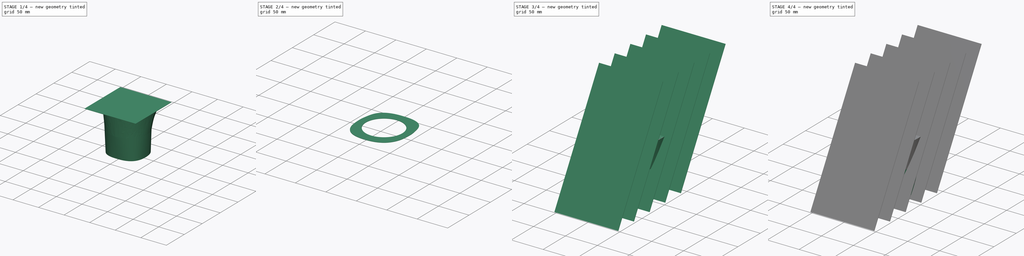
[diagram: build sequence overview — one tinted view per stage of 4, left to right]
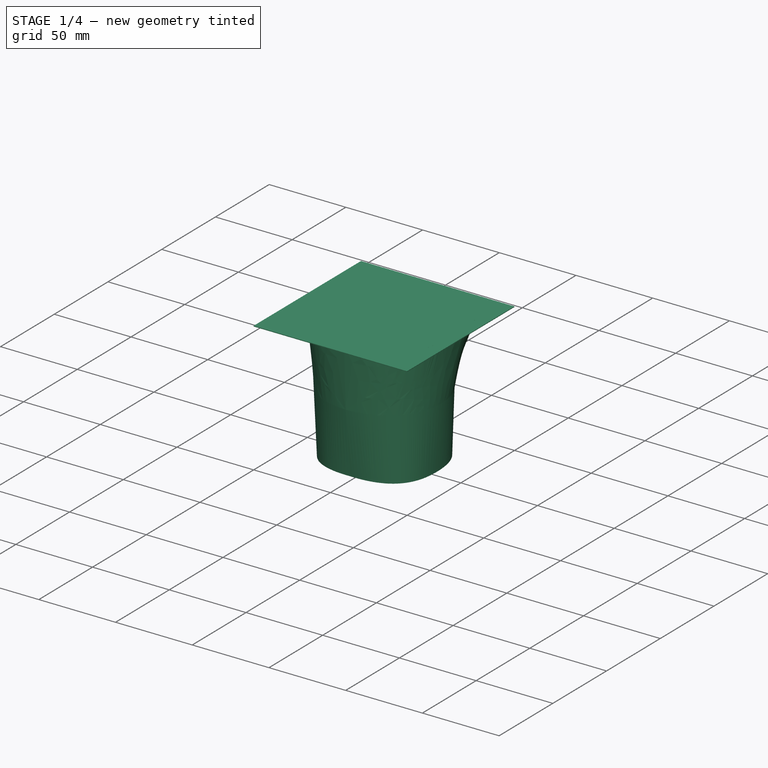
[diagram: stage 1 of 4 — iso view after this stage's code; geometry added in this stage tinted green]
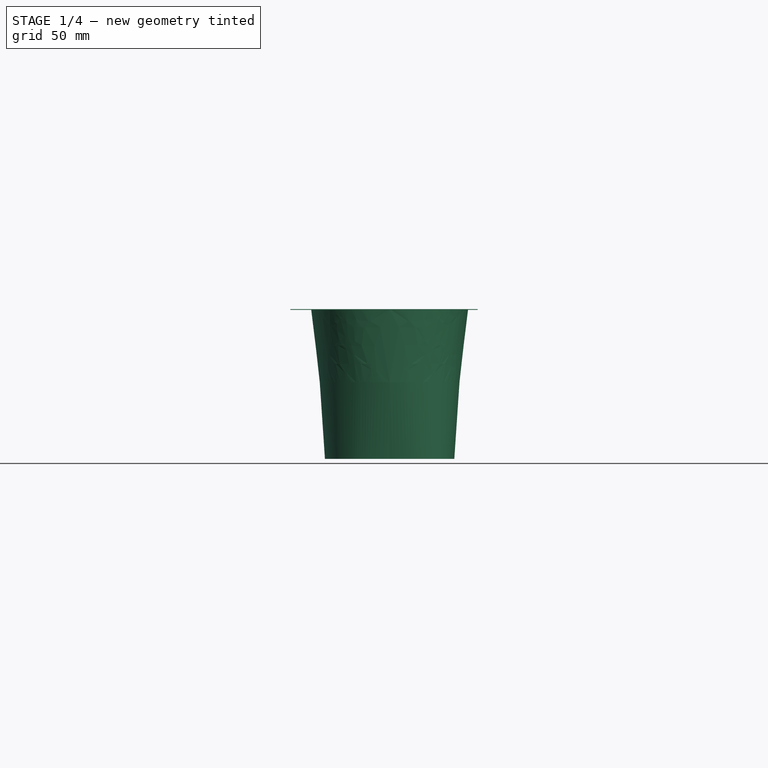
[diagram: stage 1 of 4 — front view after this stage's code; geometry added in this stage tinted green]
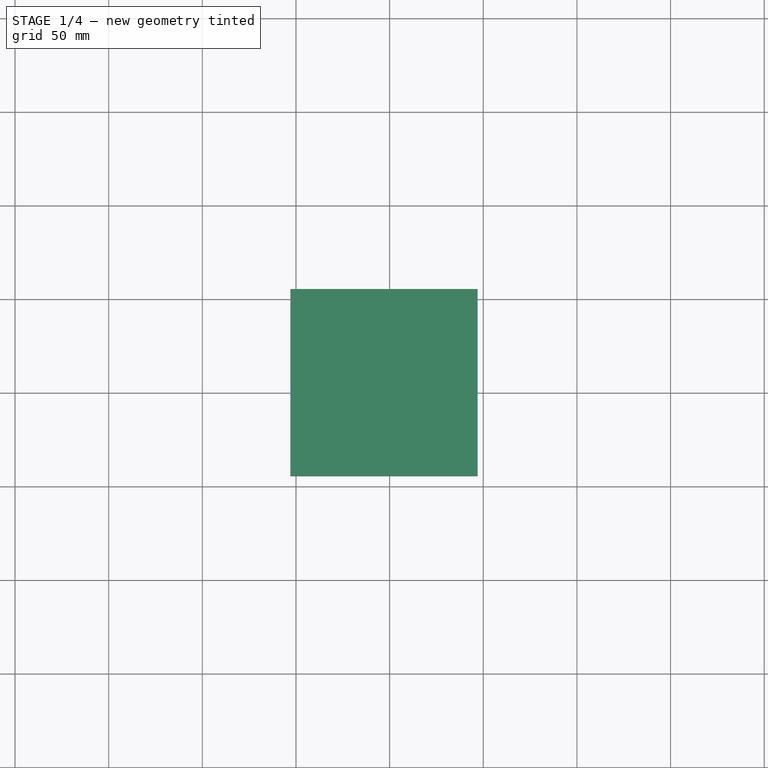
[diagram: stage 1 of 4 — top view after this stage's code; geometry added in this stage tinted green]
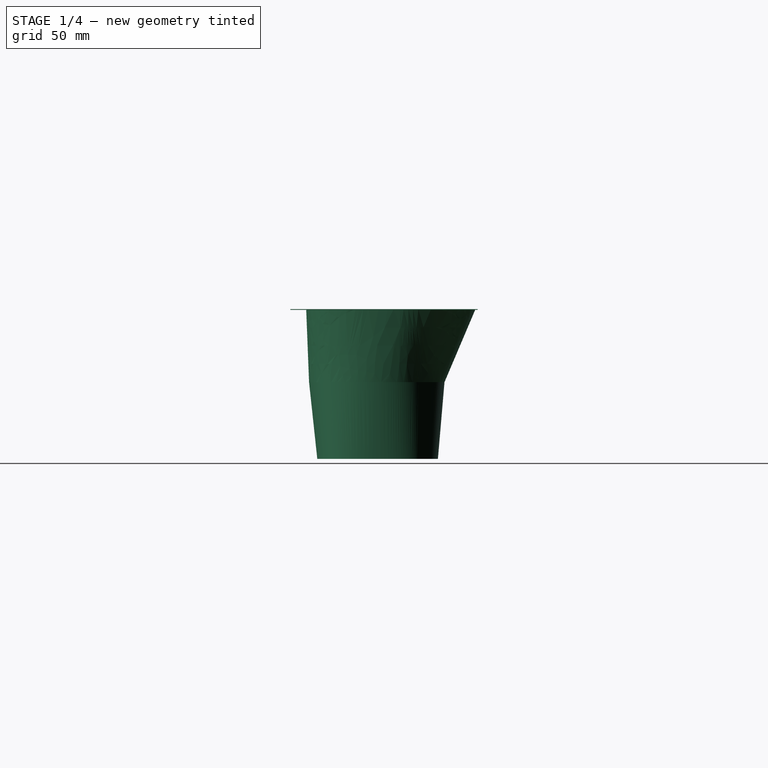
[diagram: stage 1 of 4 — right view after this stage's code; geometry added in this stage tinted green]
FCSTD DOCUMENT  (FreeCAD 0.21R33694 (Git))
Label: nose_demo
License: All rights reserved
LicenseURL: http://en.wikipedia.org/wiki/All_rights_reserved
objects: Sketcher::SketchObject×8, Image::ImagePlane×4, PartDesign::AdditiveLoft×4, PartDesign::Body×4, PartDesign::Thickness×2, Part::MultiFuse×2, Part::Box×2, App::MeasureDistance×1, Part::FeaturePython×1, Part::Cylinder×1, Part::MultiCommon×1, Part::Cut×1
note: 31 computed .brp shape members not serialized (recipe doc carries the construction recipe); baked Part::Feature solids carry a one-line shape summary decoded from their .brp

FEATURE [Part::Box] Box001  label="Cube001"
  AttacherType = Attacher::AttachEngine3D
  Height = 0.4
  Length = 100
  Placement = pos=(-53,-45.8,79.6) rot=(0,0,1;0rad)
  Width = 100
FEATURE [Sketcher::SketchObject] Sketch009
  AttachmentOffset = pos=(0,0,41) rot=(0,0,1;0rad)
  FullyConstrained = false
  MapMode = 5
  Placement = pos=(0,0,41) rot=(0,0,1;0rad)
  Support = -> [XY_Plane003]
  sketch-geometry (10):
    g0-g4: Circle x5 (B-spline internal-alignment scaffolding for g5; pole/knot coordinates omitted)
    g5: BSplineCurve PolesCount=5 KnotsCount=3 Degree=3 IsPeriodic=0
    g6: GeomPoint X=0 Y=36.497 Z=0
    g7: GeomPoint X=37.3042 Y=0.119484 Z=0
    g8: GeomPoint X=0 Y=-35.8137 Z=0
    g9: BSplineCurve PolesCount=5 KnotsCount=3 Degree=3 IsPeriodic=0
  constraints (12):
    c: Weight(g0) = 1
    c: PointOnObject(g5,g-2)
    c: Equal(g0,g1)
    c: Equal(g0,g2)
    c: PointOnObject(g2,g-1)
    c: Equal(g0,g3)
    c: Equal(g0,g4)
    c: PointOnObject(g5,g-2)
    c: InternalAlignment(g0-g4 -> g5) x5
    c: InternalAlignment(g6,g5)
    c: InternalAlignment(g7,g5)
    c: InternalAlignment(g8,g5)
FEATURE [Sketcher::SketchObject] Sketch008
  FullyConstrained = false
  MapMode = 5
  Support = -> [XY_Plane003]
  sketch-geometry (10):
    g0-g4: Circle x5 (B-spline internal-alignment scaffolding for g5; pole/knot coordinates omitted)
    g5: BSplineCurve PolesCount=5 KnotsCount=3 Degree=3 IsPeriodic=0
    g6: GeomPoint X=0 Y=32.9051 Z=0
    g7: GeomPoint X=34.5313 Y=0.497786 Z=0
    g8: GeomPoint X=0 Y=-31.3846 Z=0
    g9: BSplineCurve PolesCount=5 KnotsCount=3 Degree=3 IsPeriodic=0
  constraints (12):
    c: Weight(g0) = 1
    c: PointOnObject(g5,g-2)
    c: Equal(g0,g1)
    c: Equal(g0,g2)
    c: PointOnObject(g2,g-1)
    c: Equal(g0,g3)
    c: Equal(g0,g4)
    c: PointOnObject(g5,g-2)
    c: InternalAlignment(g0-g4 -> g5) x5
    c: InternalAlignment(g6,g5)
    c: InternalAlignment(g7,g5)
    c: InternalAlignment(g8,g5)
FEATURE [PartDesign::AdditiveLoft] AdditiveLoft003
  Closed = false
  Profile = -> Sketch009
  Ruled = true
  Sections = -> [Sketch008]
FEATURE [PartDesign::Body] Body003
  Group = -> [Sketch008,Sketch009,AdditiveLoft003]
  Origin = -> Origin003
  Tip = -> AdditiveLoft003
FEATURE [Sketcher::SketchObject] Sketch007
  AttachmentOffset = pos=(0,0,80) rot=(0,0,1;0rad)
  FullyConstrained = false
  MapMode = 5
  Placement = pos=(0,0,80) rot=(0,0,1;0rad)
  Support = -> [XY_Plane002]
  sketch-geometry (16):
    g0-g7: Circle x8 (B-spline internal-alignment scaffolding for g8; pole/knot coordinates omitted)
    g8: BSplineCurve PolesCount=8 KnotsCount=6 Degree=3 IsPeriodic=0
    g9-g14: GeomPoint x6 (B-spline internal-alignment scaffolding for g8; pole/knot coordinates omitted)
    g15: BSplineCurve PolesCount=8 KnotsCount=6 Degree=3 IsPeriodic=0
  constraints (10):
    c: Weight(g0) = 1
    c: PointOnObject(g8,g-2)
    c: Equal(g0, g1-g4) x4
    c: PointOnObject(g4,g-1)
    c: Equal(g0,g5)
    c: Equal(g0,g6)
    c: Equal(g0,g7)
    c: PointOnObject(g8,g-2)
    c: InternalAlignment(g0-g7 -> g8) x8
    c: InternalAlignment(g9-g14 -> g8) x6
FEATURE [Sketcher::SketchObject] Sketch006
  AttachmentOffset = pos=(0,0,41) rot=(0,0,1;0rad)
  FullyConstrained = false
  MapMode = 5
  Placement = pos=(0,0,41) rot=(0,0,1;0rad)
  Support = -> [XY_Plane002]
  sketch-geometry (10):
    g0-g4: Circle x5 (B-spline internal-alignment scaffolding for g5; pole/knot coordinates omitted)
    g5: BSplineCurve PolesCount=5 KnotsCount=3 Degree=3 IsPeriodic=0
    g6: GeomPoint X=0 Y=36.497 Z=0
    g7: GeomPoint X=37.3042 Y=0.119484 Z=0
    g8: GeomPoint X=0 Y=-35.8137 Z=0
    g9: BSplineCurve PolesCount=5 KnotsCount=3 Degree=3 IsPeriodic=0
  constraints (12):
    c: Weight(g0) = 1
    c: PointOnObject(g5,g-2)
    c: Equal(g0,g1)
    c: Equal(g0,g2)
    c: PointOnObject(g2,g-1)
    c: Equal(g0,g3)
    c: Equal(g0,g4)
    c: PointOnObject(g5,g-2)
    c: InternalAlignment(g0-g4 -> g5) x5
    c: InternalAlignment(g6,g5)
    c: InternalAlignment(g7,g5)
    c: InternalAlignment(g8,g5)
FEATURE [PartDesign::AdditiveLoft] AdditiveLoft002
  Closed = false
  Profile = -> Sketch007
  Ruled = true
  Sections = -> [Sketch006]
FEATURE [PartDesign::Body] Body002
  Group = -> [Sketch006,Sketch007,AdditiveLoft002]
  Origin = -> Origin002
  Tip = -> AdditiveLoft002
FEATURE [Part::MultiFuse] Fusion001
  Shapes = -> [Body002,Body003]
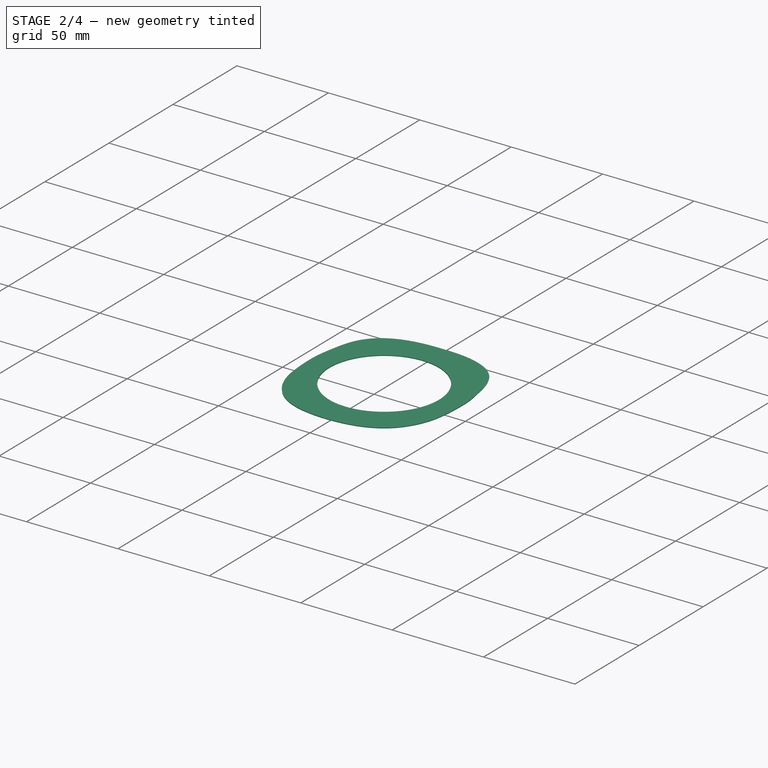
[diagram: stage 2 of 4 — iso view after this stage's code; geometry added in this stage tinted green]
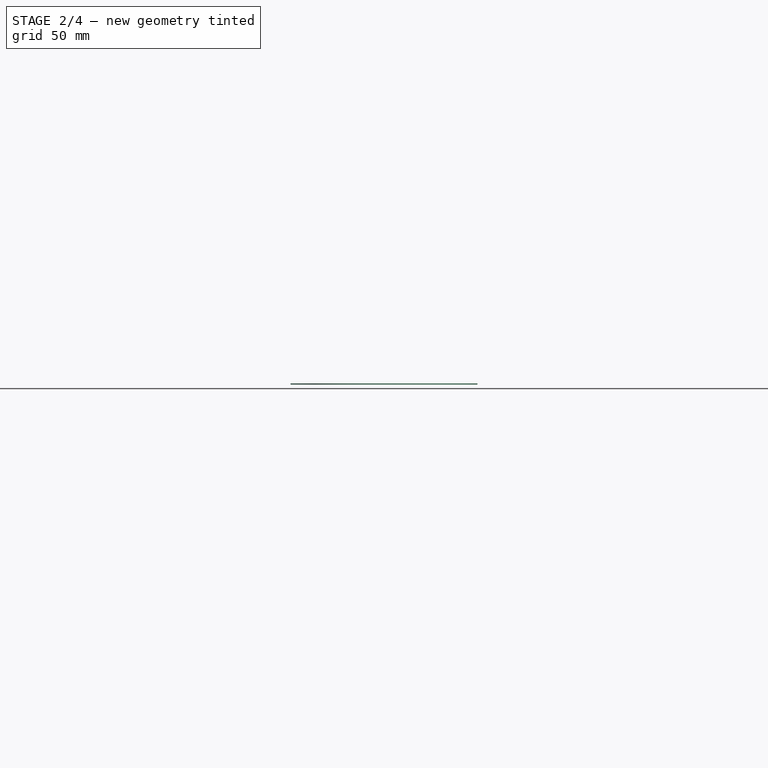
[diagram: stage 2 of 4 — front view after this stage's code; geometry added in this stage tinted green]
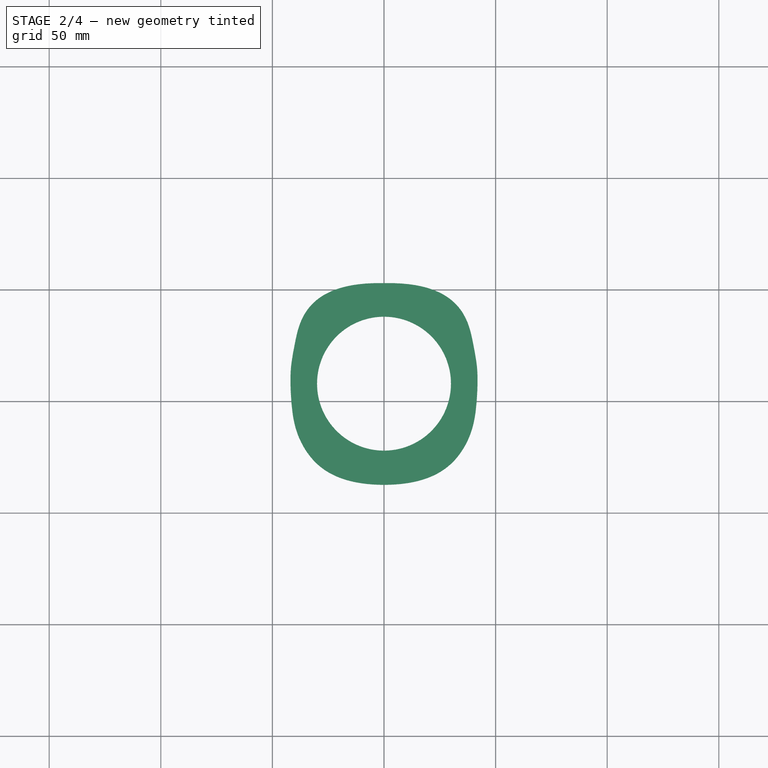
[diagram: stage 2 of 4 — top view after this stage's code; geometry added in this stage tinted green]
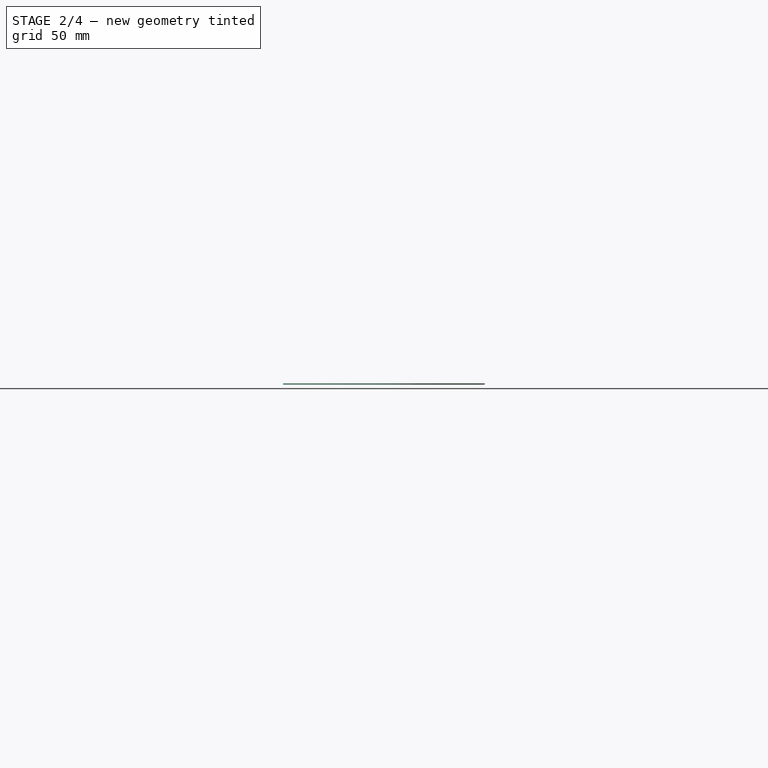
[diagram: stage 2 of 4 — right view after this stage's code; geometry added in this stage tinted green]
FEATURE [Part::Cylinder] Cylinder
  Angle = 360
  AttacherType = Attacher::AttachEngine3D
  FirstAngle = 0
  Height = 10
  Placement = pos=(0,8,78.2) rot=(0,0,1;0rad)
  Radius = 30
  SecondAngle = 0
FEATURE [Part::MultiCommon] Common
  Shapes = -> [Fusion001,Box001]
FEATURE [Part::Cut] Cut
  Base = -> Common
  Tool = -> Cylinder
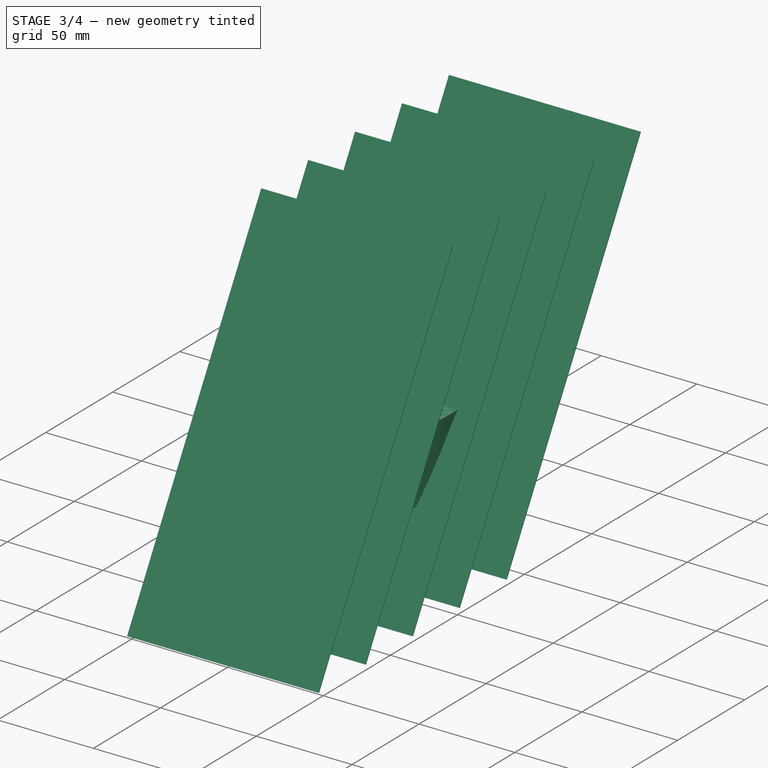
[diagram: stage 3 of 4 — iso view after this stage's code; geometry added in this stage tinted green]
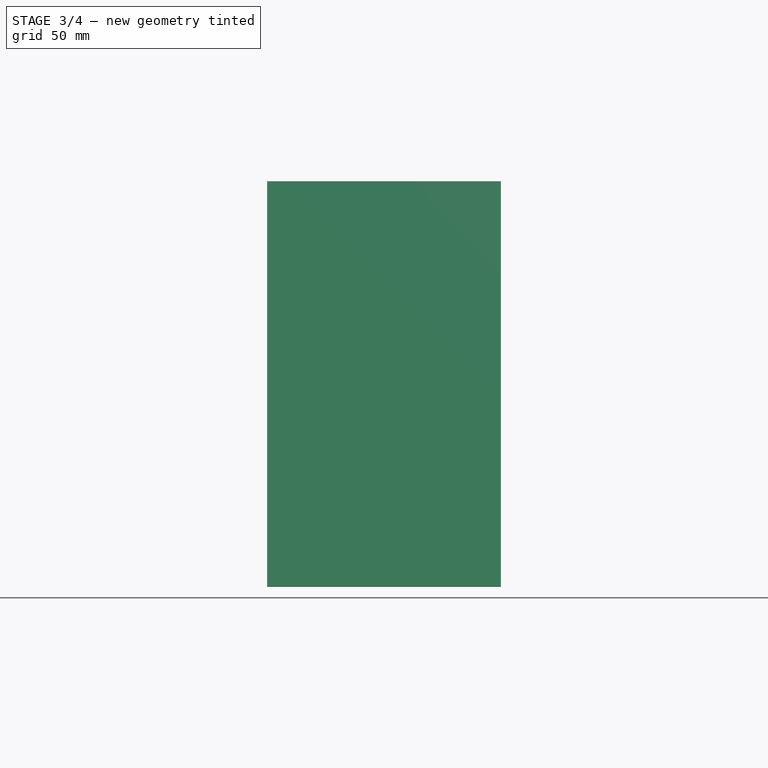
[diagram: stage 3 of 4 — front view after this stage's code; geometry added in this stage tinted green]
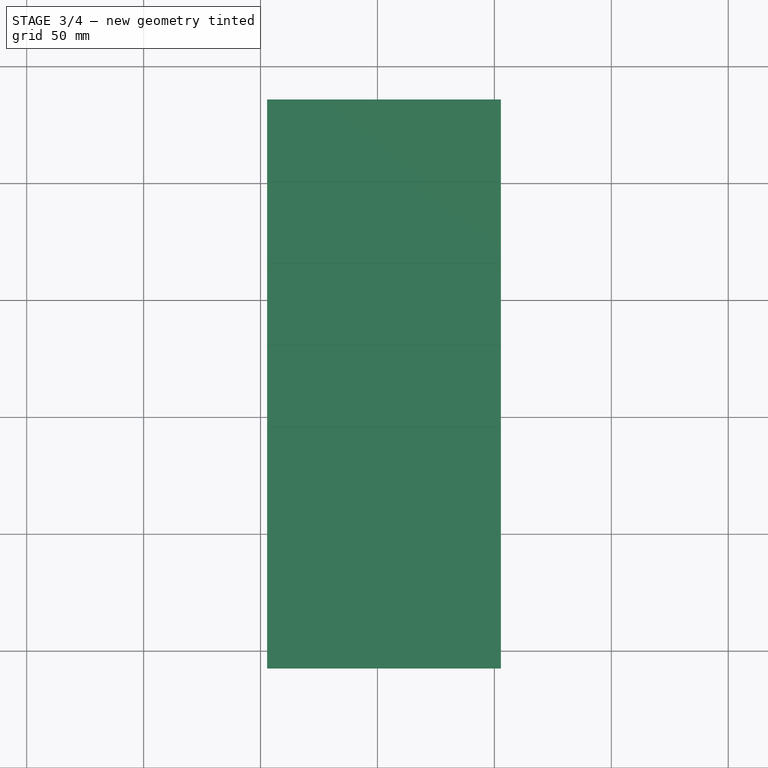
[diagram: stage 3 of 4 — top view after this stage's code; geometry added in this stage tinted green]
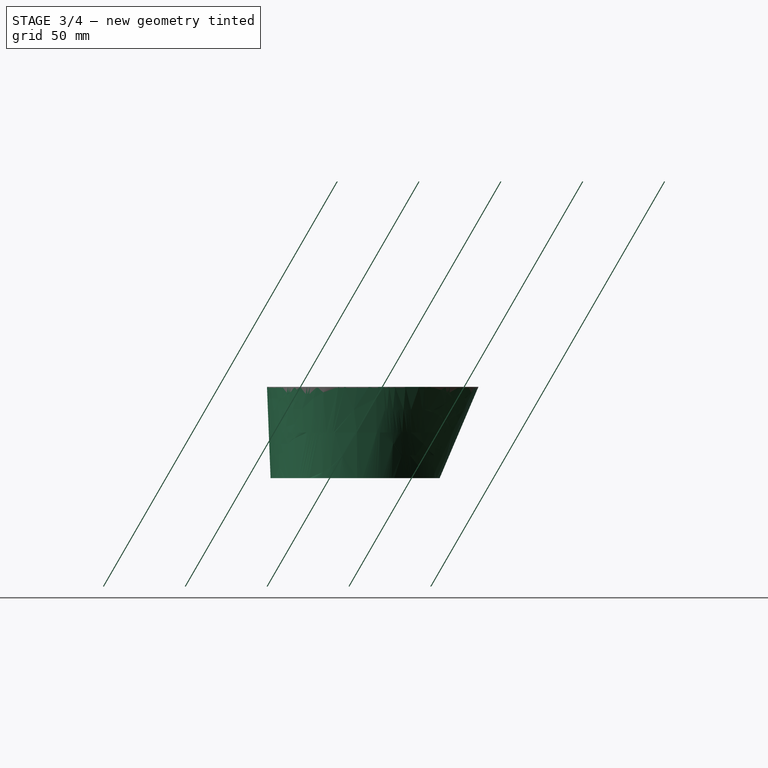
[diagram: stage 3 of 4 — right view after this stage's code; geometry added in this stage tinted green]
FEATURE [PartDesign::AdditiveLoft] AdditiveLoft001
  Closed = false
  Profile = -> Sketch005
  Ruled = true
  Sections = -> [Sketch004]
FEATURE [Part::Box] Box  label="Cube"
  AttacherType = Attacher::AttachEngine3D
  Height = 200
  Length = 100
  Placement = pos=(-47.2,-90.7758,-5.26929) rot=(-1,0,0;0.523599rad)
  Width = 0.4
FEATURE [Part::FeaturePython] Array  # Draft array (typed FeaturePython)
  AlwaysSyncPlacement = false
  Angle = 360
  ArrayType = 0
  Axis = (0,0,1)
  Base = -> Box
  Center = (0,0,0)
  Count = 5
  ExpandArray = false
  Fuse = false
  IntervalAxis = (0,0,0)
  IntervalX = (100,0,0)
  IntervalY = (0,35,0)
  IntervalZ = (0,0,20)
  NumberCircles = 3
  NumberPolar = 5
  NumberX = 1
  NumberY = 5
  NumberZ = 1
  Placement = pos=(0,-16.7,0) rot=(0,0,1;0rad)
  PlacementList = 5 placements: arithmetic series from (-47.2,-90.7758,-5.26929) step (0,35,0) to (-47.2,49.2242,-5.26929)
  RadialDistance = 50
  ScaleList = (5) [(1,1,1),(1,1,1),(1,1,1),(1,1,1),(1,1,1)]
  Symmetry = 1
  TangentialDistance = 25
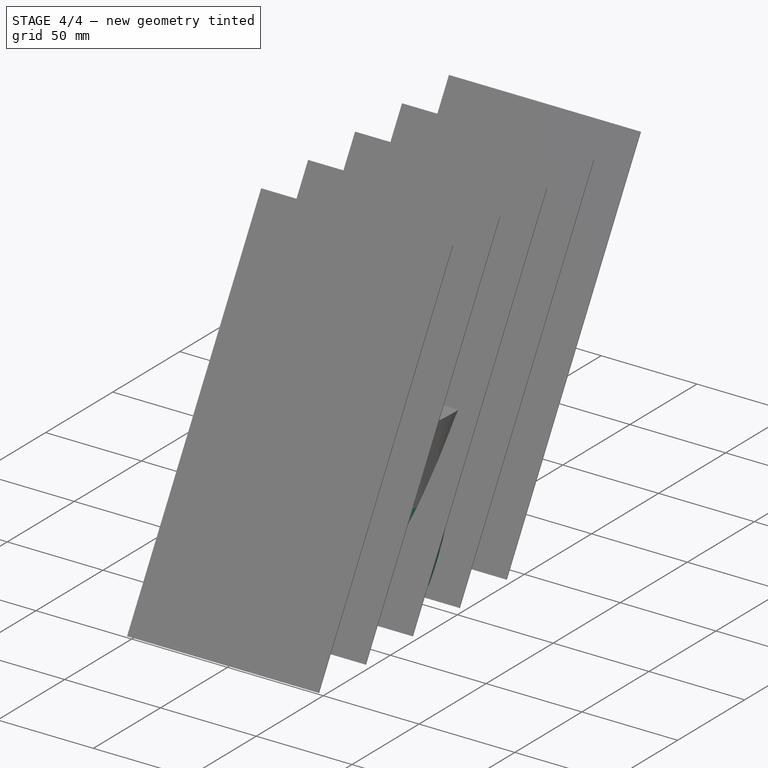
[diagram: stage 4 of 4 — iso view after this stage's code; geometry added in this stage tinted green]
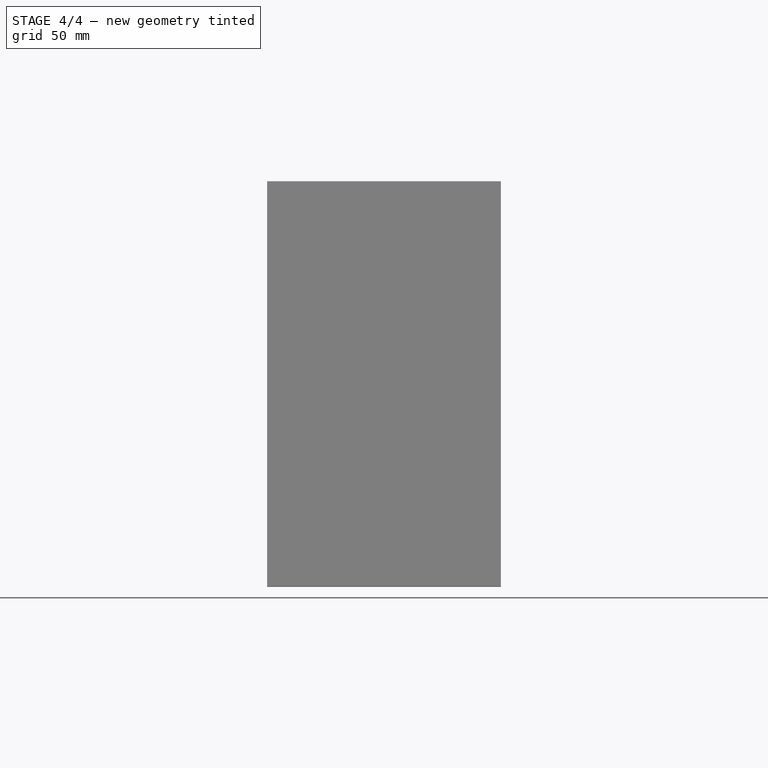
[diagram: stage 4 of 4 — front view after this stage's code; geometry added in this stage tinted green]
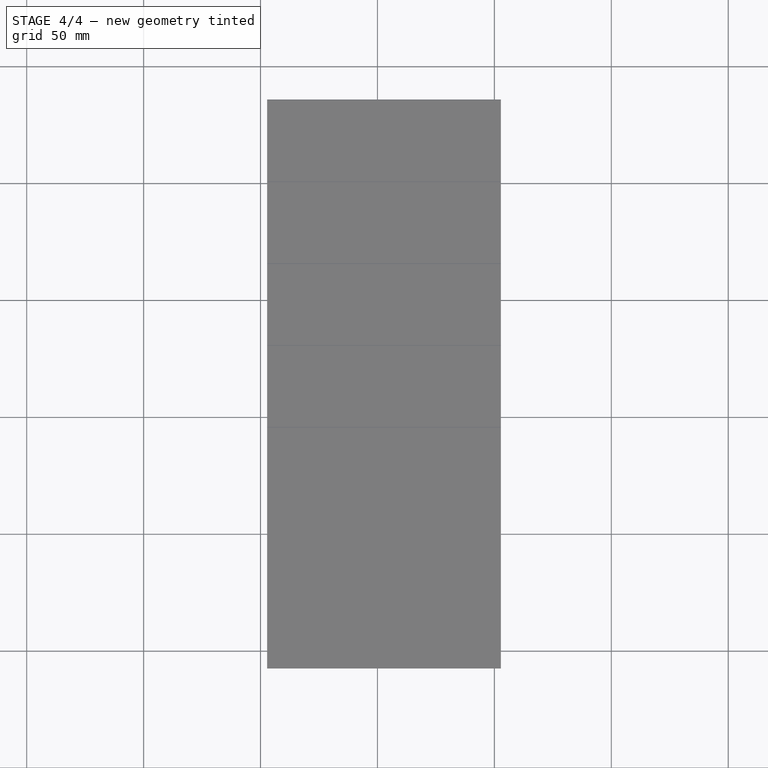
[diagram: stage 4 of 4 — top view after this stage's code; geometry added in this stage tinted green]
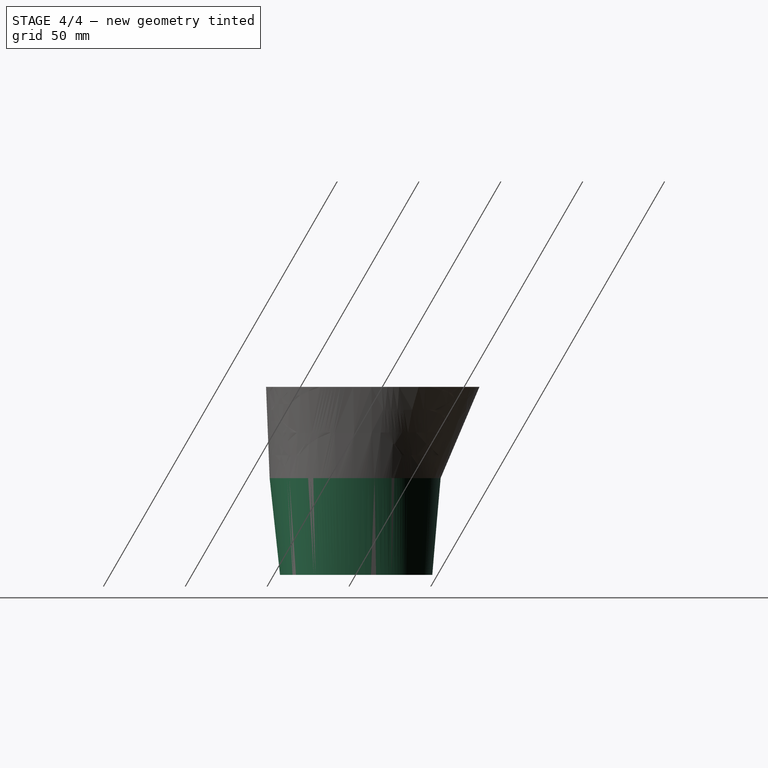
[diagram: stage 4 of 4 — right view after this stage's code; geometry added in this stage tinted green]
FEATURE [Image::ImagePlane] Screenshot_from_2023_10_14_23_56_05  label="Screenshot from 2023-10-14 23-56-05"
  Placement = pos=(-1.3,0,0) rot=(0,0,1;0rad)
  XSize = 117.558
  YSize = 96.0835
FEATURE [Image::ImagePlane] Screenshot_from_2023_10_14_23_55_51  label="Screenshot from 2023-10-14 23-55-51"
  Placement = pos=(-6,0.8,0) rot=(0,0,1;0rad)
  XSize = 153.658
  YSize = 119.36
FEATURE [Image::ImagePlane] Screenshot_from_2023_10_14_23_56_29  label="Screenshot from 2023-10-14 23-56-29"
  Placement = pos=(-8.1,5.1,0) rot=(0,0,1;0rad)
  XSize = 174.967
  YSize = 118.829
FEATURE [Sketcher::SketchObject] Sketch
  FullyConstrained = false
  MapMode = 5
  Support = -> [XY_Plane]
  sketch-geometry (10):
    g0-g4: Circle x5 (B-spline internal-alignment scaffolding for g5; pole/knot coordinates omitted)
    g5: BSplineCurve PolesCount=5 KnotsCount=3 Degree=3 IsPeriodic=0
    g6: GeomPoint X=0 Y=32.9051 Z=0
    g7: GeomPoint X=34.5313 Y=0.497786 Z=0
    g8: GeomPoint X=0 Y=-31.3846 Z=0
    g9: BSplineCurve PolesCount=5 KnotsCount=3 Degree=3 IsPeriodic=0
  constraints (12):
    c: Weight(g0) = 1
    c: PointOnObject(g5,g-2)
    c: Equal(g0,g1)
    c: Equal(g0,g2)
    c: PointOnObject(g2,g-1)
    c: Equal(g0,g3)
    c: Equal(g0,g4)
    c: PointOnObject(g5,g-2)
    c: InternalAlignment(g0-g4 -> g5) x5
    c: InternalAlignment(g6,g5)
    c: InternalAlignment(g7,g5)
    c: InternalAlignment(g8,g5)
FEATURE [Sketcher::SketchObject] Sketch001
  AttachmentOffset = pos=(0,0,41) rot=(0,0,1;0rad)
  FullyConstrained = false
  MapMode = 5
  Placement = pos=(0,0,41) rot=(0,0,1;0rad)
  Support = -> [XY_Plane]
  sketch-geometry (10):
    g0-g4: Circle x5 (B-spline internal-alignment scaffolding for g5; pole/knot coordinates omitted)
    g5: BSplineCurve PolesCount=5 KnotsCount=3 Degree=3 IsPeriodic=0
    g6: GeomPoint X=0 Y=36.497 Z=0
    g7: GeomPoint X=37.3042 Y=0.119484 Z=0
    g8: GeomPoint X=0 Y=-35.8137 Z=0
    g9: BSplineCurve PolesCount=5 KnotsCount=3 Degree=3 IsPeriodic=0
  constraints (12):
    c: Weight(g0) = 1
    c: PointOnObject(g5,g-2)
    c: Equal(g0,g1)
    c: Equal(g0,g2)
    c: PointOnObject(g2,g-1)
    c: Equal(g0,g3)
    c: Equal(g0,g4)
    c: PointOnObject(g5,g-2)
    c: InternalAlignment(g0-g4 -> g5) x5
    c: InternalAlignment(g6,g5)
    c: InternalAlignment(g7,g5)
    c: InternalAlignment(g8,g5)
FEATURE [Sketcher::SketchObject] Sketch004
  AttachmentOffset = pos=(0,0,41) rot=(0,0,1;0rad)
  FullyConstrained = false
  MapMode = 5
  Placement = pos=(0,0,41) rot=(0,0,1;0rad)
  Support = -> [XY_Plane001]
  sketch-geometry (10):
    g0-g4: Circle x5 (B-spline internal-alignment scaffolding for g5; pole/knot coordinates omitted)
    g5: BSplineCurve PolesCount=5 KnotsCount=3 Degree=3 IsPeriodic=0
    g6: GeomPoint X=0 Y=36.497 Z=0
    g7: GeomPoint X=37.3042 Y=0.119484 Z=0
    g8: GeomPoint X=0 Y=-35.8137 Z=0
    g9: BSplineCurve PolesCount=5 KnotsCount=3 Degree=3 IsPeriodic=0
  constraints (12):
    c: Weight(g0) = 1
    c: PointOnObject(g5,g-2)
    c: Equal(g0,g1)
    c: Equal(g0,g2)
    c: PointOnObject(g2,g-1)
    c: Equal(g0,g3)
    c: Equal(g0,g4)
    c: PointOnObject(g5,g-2)
    c: InternalAlignment(g0-g4 -> g5) x5
    c: InternalAlignment(g6,g5)
    c: InternalAlignment(g7,g5)
    c: InternalAlignment(g8,g5)
FEATURE [Sketcher::SketchObject] Sketch005
  AttachmentOffset = pos=(0,0,80) rot=(0,0,1;0rad)
  FullyConstrained = false
  MapMode = 5
  Placement = pos=(0,0,80) rot=(0,0,1;0rad)
  Support = -> [XY_Plane001]
  sketch-geometry (16):
    g0-g7: Circle x8 (B-spline internal-alignment scaffolding for g8; pole/knot coordinates omitted)
    g8: BSplineCurve PolesCount=8 KnotsCount=6 Degree=3 IsPeriodic=0
    g9-g14: GeomPoint x6 (B-spline internal-alignment scaffolding for g8; pole/knot coordinates omitted)
    g15: BSplineCurve PolesCount=8 KnotsCount=6 Degree=3 IsPeriodic=0
  constraints (10):
    c: Weight(g0) = 1
    c: PointOnObject(g8,g-2)
    c: Equal(g0, g1-g4) x4
    c: PointOnObject(g4,g-1)
    c: Equal(g0,g5)
    c: Equal(g0,g6)
    c: Equal(g0,g7)
    c: PointOnObject(g8,g-2)
    c: InternalAlignment(g0-g7 -> g8) x8
    c: InternalAlignment(g9-g14 -> g8) x6
FEATURE [PartDesign::AdditiveLoft] AdditiveLoft
  Closed = false
  Profile = -> Sketch001
  Ruled = true
  Sections = -> [Sketch]
FEATURE [App::MeasureDistance] Distance  label="Distance: 64.29 mm"
  Distance = 64.2866
  P1 = (-0.105968,32.9036,0)
  P2 = (-0.0834491,-31.3831,0)
FEATURE [Image::ImagePlane] Screenshot_from_2023_10_15_16_07_44  label="Screenshot from 2023-10-15 16-07-44"
  Placement = pos=(-1e-14,17.7,44.9) rot=(0,1,0;4.71239rad)
  XSize = 263.435
  YSize = 168.665
FEATURE [PartDesign::Thickness] Thickness
  Base = -> AdditiveLoft [Face1]
  BaseFeature = -> AdditiveLoft
  Intersection = false
  Join = 1
  Mode = 0
  SupportTransform = false
  Value = 0.4
FEATURE [PartDesign::Body] Body
  Group = -> [Sketch,Sketch001,AdditiveLoft,Thickness]
  Origin = -> Origin
  Tip = -> Thickness
FEATURE [PartDesign::Thickness] Thickness001
  Base = -> AdditiveLoft001 [Face1,Face3]
  BaseFeature = -> AdditiveLoft001
  Intersection = false
  Join = 1
  Mode = 1
  SupportTransform = false
  Value = 0.4
FEATURE [PartDesign::Body] Body001
  Group = -> [Sketch004,Sketch005,AdditiveLoft001,Thickness001]
  Origin = -> Origin001
  Tip = -> Thickness001
FEATURE [Part::MultiFuse] Fusion
  Shapes = -> [Body001,Body]
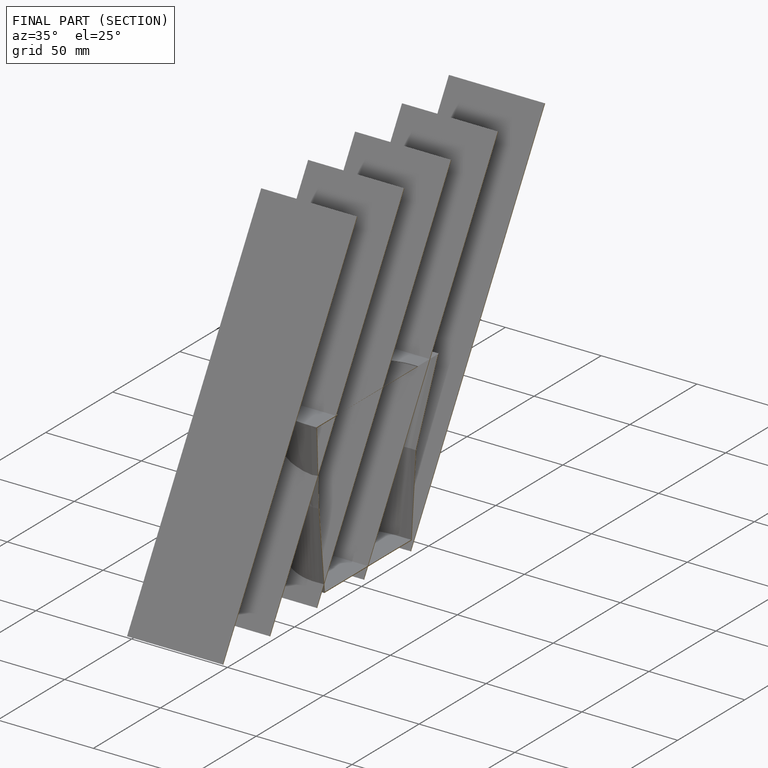
[diagram: finished part — half-section view (interior)]
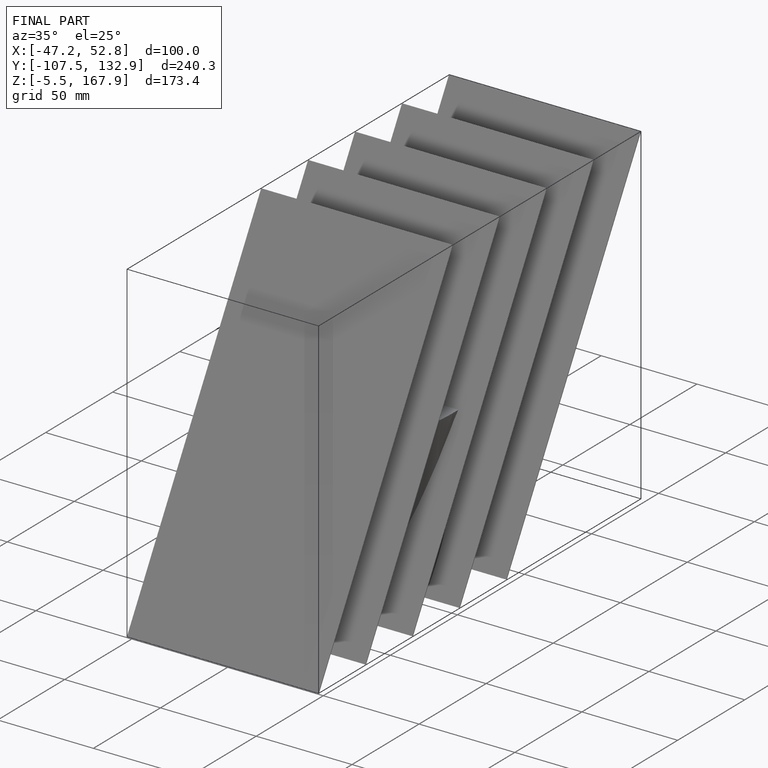
[diagram: finished part — iso view with bounding-box wireframe]
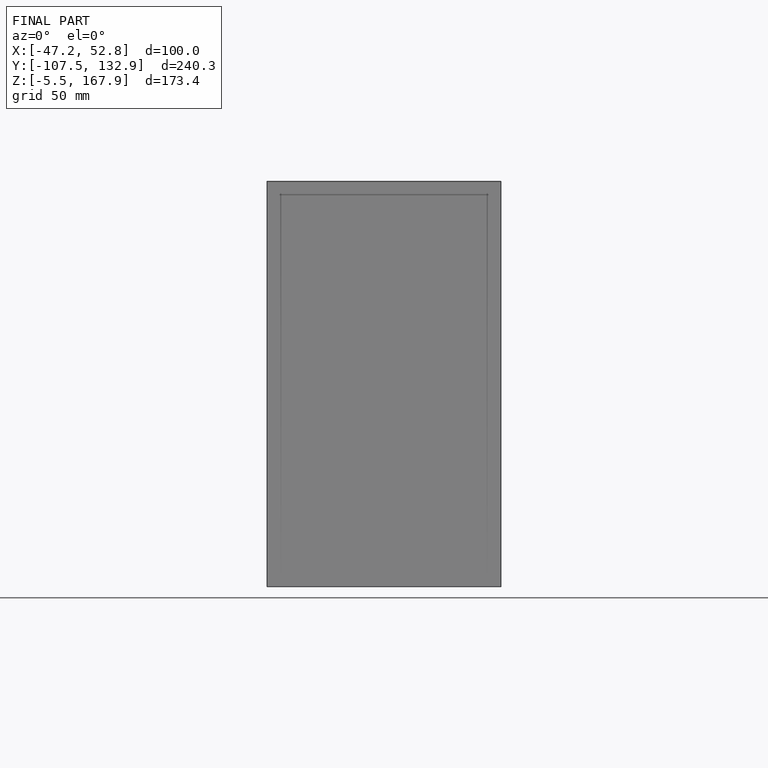
[diagram: finished part — front view with bounding-box wireframe]
